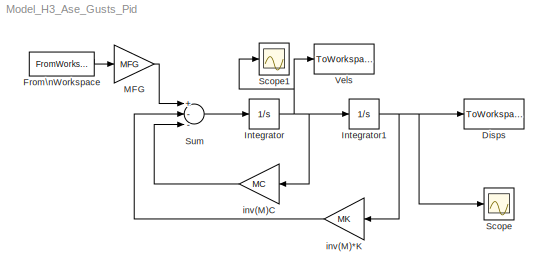
MODEL Model_H3_Ase_Gusts_Pid
KIND model
BLOCK [ToWorkspace] Disps
  MaxDataPoints = inf
  SampleTime = dt
  SaveFormat = Array
  VariableName = EoutG1
BLOCK [FromWorkspace] From\nWorkspace
  SampleTime = dt
  VariableName = Egust
BLOCK [Integrator] Integrator
  IgnoreLimit = off
  Ports = [1, 1]
BLOCK [Integrator] Integrator1
  IgnoreLimit = off
  Ports = [1, 1]
BLOCK [Gain] MFG
  Gain = MFG
  Multiplication = Matrix(K*u) (u vector)
BLOCK [Scope] Scope
  DataFormat = StructureWithTime
  Floating = off
  LimitDataPoints = off
  NumInputPorts = 1
  Ports = [1]
  SampleTime = 0
  YMax = 1.25
  YMin = -1.25
  ZoomMode = yonly
BLOCK [Scope] Scope1
  DataFormat = StructureWithTime
  Floating = off
  LimitDataPoints = off
  NumInputPorts = 1
  Ports = [1]
  SampleTime = 0
  SaveName = ScopeData1
  YMax = 80
  YMin = -80
BLOCK [Sum] Sum
  InputSameDT = off
  Inputs = +--
  OutDataTypeMode = Inherit via internal rule
  Ports = [3, 1]
BLOCK [ToWorkspace] Vels
  MaxDataPoints = inf
  SampleTime = dt
  SaveFormat = Array
  VariableName = EoutG2
BLOCK [Gain] inv(M)*K
  Gain = MK
  Multiplication = Matrix(K*u)
BLOCK [Gain] inv(M)C
  Gain = MC
  Multiplication = Matrix(K*u)
LINE From\nWorkspace:1 -> MFG:1
NET Integrator1:1 -> Disps:1, Scope:1, inv(M)*K:1
NET Integrator:1 -> Integrator1:1, Scope1:1, Vels:1, inv(M)C:1
LINE MFG:1 -> Sum:1
LINE Sum:1 -> Integrator:1
LINE inv(M)*K:1 -> Sum:2
LINE inv(M)C:1 -> Sum:3
note: NET lines group one-source signal fan-out (src -> all destinations, sorted); 1:1 wires keep LINE
